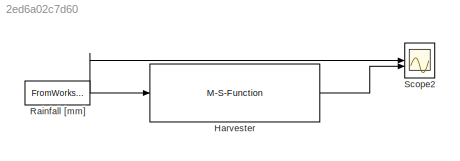
MODEL slx_2ed6a02c7d60
KIND model
CONFIG AbsTol = auto
CONFIG EnableMultiTasking = off
CONFIG FixedStep = auto
CONFIG MaxStep = auto
CONFIG MinStep = auto
CONFIG RelTol = 1e-3
CONFIG SampleTimeConstraint = Unconstrained
CONFIG SolverName = VariableStepAuto
CONFIG StartTime = 0.0
CONFIG StopTime = 365*24
BLOCK [M-S-Function] Harvester
  FunctionName = Harvester_s
  Parameters = Type_harvester, inflow_groundwater, Area
BLOCK [FromWorkspace] Rainfall [mm]
  OutDataTypeStr = double
  SampleTime = 1
  VariableName = rain_data
BLOCK [Scope] Scope2
  Floating = off
  NumInputPorts = 2
  ScopeSpecificationString = Simulink.scopes.TimeScopeBlockCfg('CurrentConfiguration', extmgr.ConfigurationSet(extmgr.Configuration('Core','General UI',true),extmgr.Configuration('Core','Source UI',true),extmgr.Configuration('Sources','WiredSimulink',true,'DataLoggingVariableName','ScopeData2'),extmgr.Configuration('Visuals','Time Domain',true,'SerializedDisplays',{struct('MinYLimReal','-124.21553','MaxYLimReal','1117.93973',...<+1566ch>
LINE Harvester:1 -> Scope2:2
NET Rainfall [mm]:1 -> Harvester:1, Scope2:1
note: NET lines group one-source signal fan-out (src -> all destinations, sorted); 1:1 wires keep LINE
